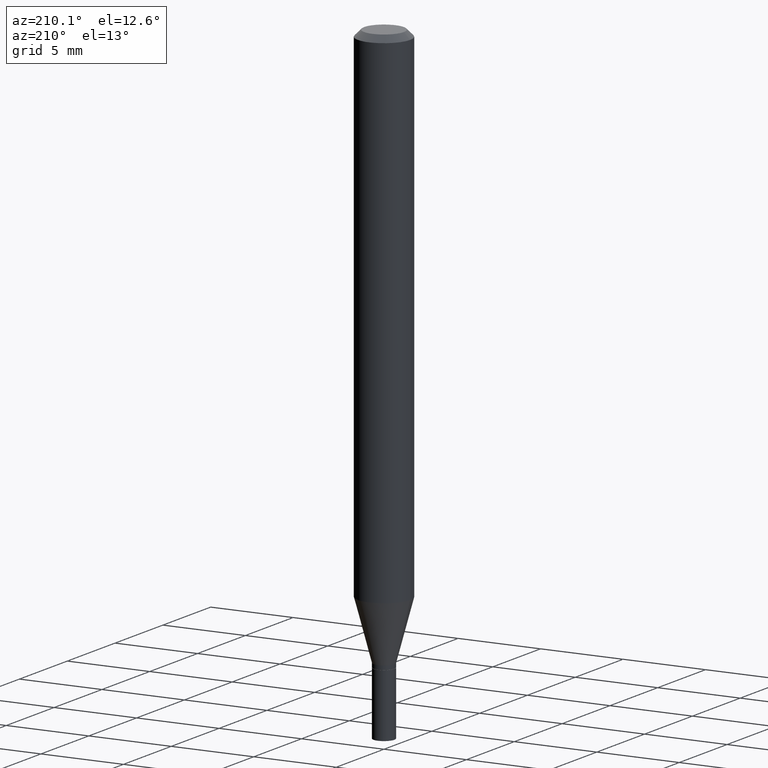
[diagram: clean part render]
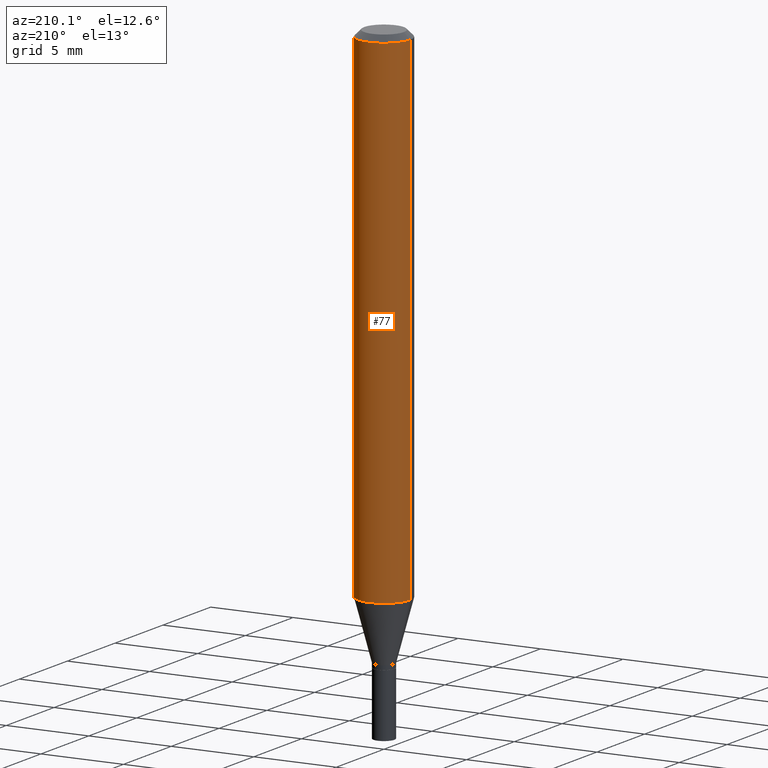
[diagram: same view with one face highlighted and labeled with its STEP entity id]
A machine part, auxiliary view. The second image highlights one B-rep face of the part: STEP entity #77.
In plain terms, the highlighted cylindrical surface (edge-blend (fillet) strip) has radius 1.5875 mm, axis along (-0, 0, 1).
Its self-contained STEP definition (entity closure, byte-faithful):
#35 = EDGE_CURVE ( 'NONE', #459, #180, #224, .T. ) ;
#54 = CARTESIAN_POINT ( 'NONE',  ( 0.06250000000000000000, -4.888073874380388472E-16, -0.01499999999999999944 ) ) ;
#67 = VERTEX_POINT ( 'NONE', #54 ) ;
#77 = ADVANCED_FACE ( 'NONE', ( #127 ), #259, .T. ) ;
#79 = ORIENTED_EDGE ( 'NONE', *, *, #278, .F. ) ;
#93 = CARTESIAN_POINT ( 'NONE',  ( 0.06250000000000000000, -4.364351673553916694E-16, 3.047610484872459871E-30 ) ) ;
#109 = CIRCLE ( 'NONE', #168, 0.06250000000000000000 ) ;
#127 = FACE_OUTER_BOUND ( 'NONE', #419, .T. ) ;
#132 = DIRECTION ( 'NONE',  ( 1.000000000000000000, -6.982962677686270655E-15, 0.000000000000000000 ) ) ;
#134 = DIRECTION ( 'NONE',  ( -2.445468806185136597E-29, 3.491481338843145583E-15, 1.000000000000000000 ) ) ;
#150 = CARTESIAN_POINT ( 'NONE',  ( 0.000000000000000000, 0.000000000000000000, 0.000000000000000000 ) ) ;
#158 = CARTESIAN_POINT ( 'NONE',  ( -0.06250000000000000000, 4.440892098500626162E-16, -3.074334431409316114E-30 ) ) ;
#167 = VECTOR ( 'NONE', #295, 39.37007874015748143 ) ;
#168 = AXIS2_PLACEMENT_3D ( 'NONE', #320, #452, #227 ) ;
#180 = VERTEX_POINT ( 'NONE', #300 ) ;
#182 = EDGE_CURVE ( 'NONE', #276, #459, #199, .T. ) ;
#195 = DIRECTION ( 'NONE',  ( -2.445468806185136597E-29, 3.491481338843145583E-15, 1.000000000000000000 ) ) ;
#199 = CIRCLE ( 'NONE', #243, 0.06250000000000000000 ) ;
#224 = LINE ( 'NONE', #158, #167 ) ;
#227 = DIRECTION ( 'NONE',  ( 1.000000000000000000, -6.982962677686266711E-15, 0.000000000000000000 ) ) ;
#230 = DIRECTION ( 'NONE',  ( -2.445468806185136877E-29, 3.491481338843145188E-15, 1.000000000000000000 ) ) ;
#243 = AXIS2_PLACEMENT_3D ( 'NONE', #455, #134, #132 ) ;
#259 = CYLINDRICAL_SURFACE ( 'NONE', #395, 0.06250000000000000000 ) ;
#276 = VERTEX_POINT ( 'NONE', #437 ) ;
#278 = EDGE_CURVE ( 'NONE', #276, #67, #398, .T. ) ;
#295 = DIRECTION ( 'NONE',  ( -2.445468806185136877E-29, 3.491481338843145188E-15, 1.000000000000000000 ) ) ;
#300 = CARTESIAN_POINT ( 'NONE',  ( -0.06250000000000000000, -1.677069664399145667E-15, -0.01499999999999999944 ) ) ;
#309 = ORIENTED_EDGE ( 'NONE', *, *, #415, .F. ) ;
#311 = ORIENTED_EDGE ( 'NONE', *, *, #35, .T. ) ;
#320 = CARTESIAN_POINT ( 'NONE',  ( 3.668203209277705088E-31, -5.237222008264718399E-17, -0.01499999999999999944 ) ) ;
#379 = ORIENTED_EDGE ( 'NONE', *, *, #182, .T. ) ;
#395 = AXIS2_PLACEMENT_3D ( 'NONE', #150, #195, #439 ) ;
#398 = LINE ( 'NONE', #93, #453 ) ;
#415 = EDGE_CURVE ( 'NONE', #67, #180, #109, .T. ) ;
#419 = EDGE_LOOP ( 'NONE', ( #379, #311, #309, #79 ) ) ;
#437 = CARTESIAN_POINT ( 'NONE',  ( 0.06250000000000000000, -4.626380695771161156E-15, -1.200048094716167135 ) ) ;
#439 = DIRECTION ( 'NONE',  ( 1.000000000000000000, -6.982962677686266711E-15, 4.876176775795935793E-29 ) ) ;
#442 = CARTESIAN_POINT ( 'NONE',  ( -0.06250000000000000000, -3.745856318565706871E-15, -1.200048094716167135 ) ) ;
#452 = DIRECTION ( 'NONE',  ( -2.445468806185136597E-29, 3.491481338843145583E-15, 1.000000000000000000 ) ) ;
#453 = VECTOR ( 'NONE', #230, 39.37007874015748143 ) ;
#455 = CARTESIAN_POINT ( 'NONE',  ( 2.934680181550293043E-29, -4.189945528415769487E-15, -1.200048094716167135 ) ) ;
#459 = VERTEX_POINT ( 'NONE', #442 ) ;